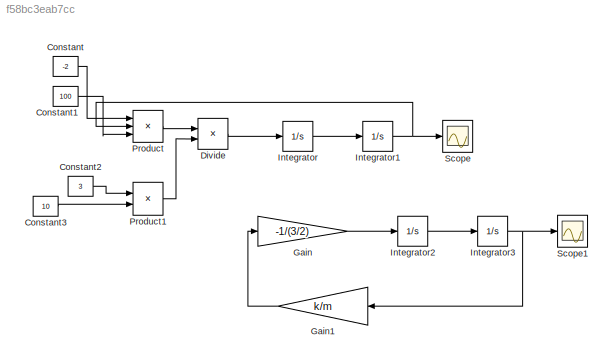
MODEL slx_f58bc3eab7cc
KIND model
CONFIG AbsTol = auto
CONFIG EnableMultiTasking = off
CONFIG FixedStep = auto
CONFIG MaxStep = auto
CONFIG MinStep = auto
CONFIG RelTol = 1e-3
CONFIG SampleTimeConstraint = Unconstrained
CONFIG SolverName = ode23
CONFIG StartTime = 0.0
CONFIG StopTime = 15
BLOCK [Constant] Constant
  Value = -2
BLOCK [Constant] Constant1
  Value = 100
BLOCK [Constant] Constant2
  Value = 3
BLOCK [Constant] Constant3
  Value = 10
BLOCK [Product] Divide
  Inputs = */
BLOCK [Gain] Gain
  Gain = -1/(3/2)
BLOCK [Gain] Gain1
  Gain = k/m
  NameLocation = top
BLOCK [Integrator] Integrator
  InitialCondition = 2
BLOCK [Integrator] Integrator1
BLOCK [Integrator] Integrator2
  InitialCondition = 2
BLOCK [Integrator] Integrator3
BLOCK [Product] Product
  Inputs = 3
BLOCK [Product] Product1
BLOCK [Scope] Scope
  Floating = off
  NumInputPorts = 1
  ScopeSpecificationString = Simulink.scopes.TimeScopeBlockCfg('CurrentConfiguration', extmgr.ConfigurationSet(extmgr.Configuration('Core','General UI',true),extmgr.Configuration('Core','Source UI',true),extmgr.Configuration('Sources','WiredSimulink',true),extmgr.Configuration('Visuals','Time Domain',true,'SerializedDisplays',{struct('MinYLimReal','-0.96344','MaxYLimReal','0.95942','YLabelReal','','MinYLimMag','0.00000','MaxY...<+1331ch>
BLOCK [Scope] Scope1
  Floating = off
  NumInputPorts = 1
  ScopeSpecificationString = Simulink.scopes.TimeScopeBlockCfg('CurrentConfiguration', extmgr.ConfigurationSet(extmgr.Configuration('Core','General UI',true),extmgr.Configuration('Core','Source UI',true),extmgr.Configuration('Sources','WiredSimulink',true,'DataLoggingVariableName','ScopeData1'),extmgr.Configuration('Visuals','Time Domain',true,'SerializedDisplays',{struct('MinYLimReal','-0.96344','MaxYLimReal','0.95942','YLab...<+1370ch>
LINE Constant1:1 -> Product:3
LINE Constant2:1 -> Product1:1
LINE Constant3:1 -> Product1:2
LINE Constant:1 -> Product:1
LINE Divide:1 -> Integrator:1
LINE Gain1:1 -> Gain:1
LINE Gain:1 -> Integrator2:1
NET Integrator1:1 -> Product:2, Scope:1
LINE Integrator2:1 -> Integrator3:1
NET Integrator3:1 -> Gain1:1, Scope1:1
LINE Integrator:1 -> Integrator1:1
LINE Product1:1 -> Divide:2
LINE Product:1 -> Divide:1
note: NET lines group one-source signal fan-out (src -> all destinations, sorted); 1:1 wires keep LINE
